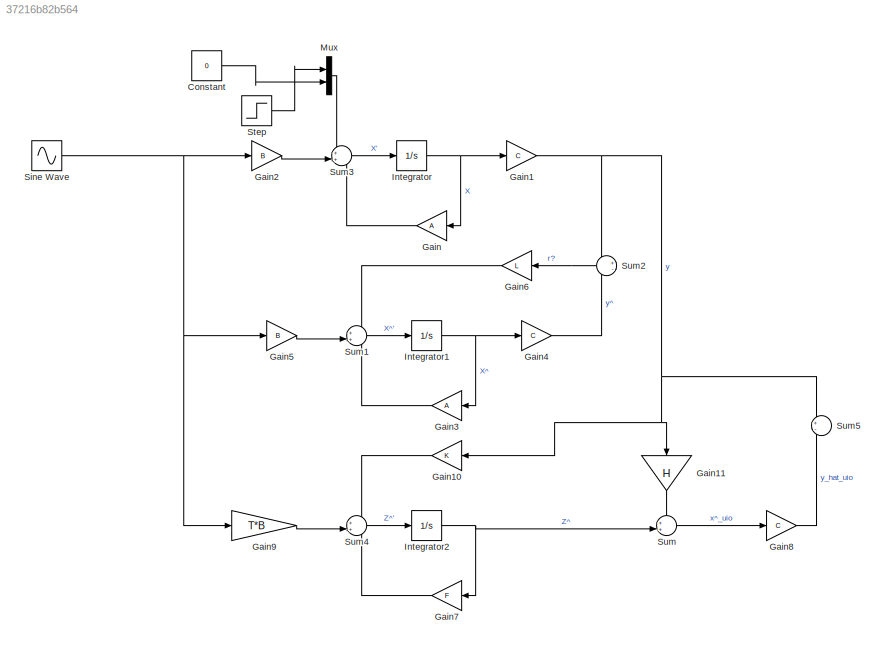
MODEL slx_37216b82b564
KIND model
CONFIG AbsTol = auto
CONFIG EnableMultiTasking = off
CONFIG FixedStep = auto
CONFIG InitFcn = clear all\nA=[0 1;-3 -2];\nB=[0;1];\nC=[1 0];\n\nP=[-3;-3];\nLT=acker(A',C',P);\nL=LT';\n\nE=[1;1];\nH=E*pinv(C*E)\nT=eye(2)-H*C\nA1=A-H*C*A;\n\nk11=4; k12=0; % we can show that one polse is always at -3 and the other pole is at -k11\nK1=[k11;k12]; \nF=A1-K1*C\nK2=F*H\nK=K1+K2\n\n
CONFIG MaxStep = 0.01
CONFIG MinStep = auto
CONFIG RelTol = 1e-3
CONFIG SampleTimeConstraint = Unconstrained
CONFIG SolverName = VariableStepAuto
CONFIG StartTime = 0.0
CONFIG StopTime = 10.0
BLOCK [Constant] Constant
  Value = 0
BLOCK [Gain] Gain
  Gain = A
  Multiplication = Matrix(K*u)
  NameLocation = top
BLOCK [Gain] Gain1
  Gain = C
  Multiplication = Matrix(K*u)
BLOCK [Gain] Gain10
  Gain = K
  Multiplication = Matrix(K*u)
  NameLocation = top
BLOCK [Gain] Gain11
  Gain = H
  Multiplication = Matrix(K*u)
  NameLocation = left
BLOCK [Gain] Gain2
  Gain = B
  Multiplication = Matrix(K*u)
BLOCK [Gain] Gain3
  Gain = A
  Multiplication = Matrix(K*u)
  NameLocation = top
BLOCK [Gain] Gain4
  Gain = C
  Multiplication = Matrix(K*u)
BLOCK [Gain] Gain5
  Gain = B
  Multiplication = Matrix(K*u)
BLOCK [Gain] Gain6
  Gain = L
  Multiplication = Matrix(K*u)
  NameLocation = top
BLOCK [Gain] Gain7
  Gain = F
  Multiplication = Matrix(K*u)
  NameLocation = top
BLOCK [Gain] Gain8
  Gain = C
  Multiplication = Matrix(K*u)
BLOCK [Gain] Gain9
  Gain = T*B
  Multiplication = Matrix(K*u)
BLOCK [Integrator] Integrator
  InitialCondition = [1;0]
BLOCK [Integrator] Integrator1
BLOCK [Integrator] Integrator2
  InitialCondition = [0.5;0]
BLOCK [Mux] Mux
  DisplayOption = bar
  Inputs = 2
BLOCK [Sin] Sine Wave
  SampleTime = 0
BLOCK [Step] Step
  SampleTime = 0
  Time = 3
BLOCK [Sum] Sum
  Inputs = ++|
BLOCK [Sum] Sum1
  Inputs = 3
BLOCK [Sum] Sum2
  Inputs = +-
  NameLocation = top
BLOCK [Sum] Sum3
  Inputs = 3
BLOCK [Sum] Sum4
  Inputs = 3
BLOCK [Sum] Sum5
  Inputs = +-
LINE Constant:1 -> Mux:2
LINE Gain10:1 -> Sum4:1
LINE Gain11:1 -> Sum:1
NET Gain1:1 -> Gain10:1, Gain11:1, Sum2:1, Sum5:1
LINE Gain2:1 -> Sum3:2
LINE Gain3:1 -> Sum1:3
LINE Gain4:1 -> Sum2:2
LINE Gain5:1 -> Sum1:2
LINE Gain6:1 -> Sum1:1
LINE Gain7:1 -> Sum4:3
LINE Gain8:1 -> Sum5:2
LINE Gain9:1 -> Sum4:2
LINE Gain:1 -> Sum3:3
NET Integrator1:1 -> Gain3:1, Gain4:1
NET Integrator2:1 -> Gain7:1, Sum:2
NET Integrator:1 -> Gain1:1, Gain:1
LINE Mux:1 -> Sum3:1
NET Sine Wave:1 -> Gain2:1, Gain5:1, Gain9:1
LINE Step:1 -> Mux:1
LINE Sum1:1 -> Integrator1:1
LINE Sum2:1 -> Gain6:1
LINE Sum3:1 -> Integrator:1
LINE Sum4:1 -> Integrator2:1
LINE Sum:1 -> Gain8:1
note: NET lines group one-source signal fan-out (src -> all destinations, sorted); 1:1 wires keep LINE
